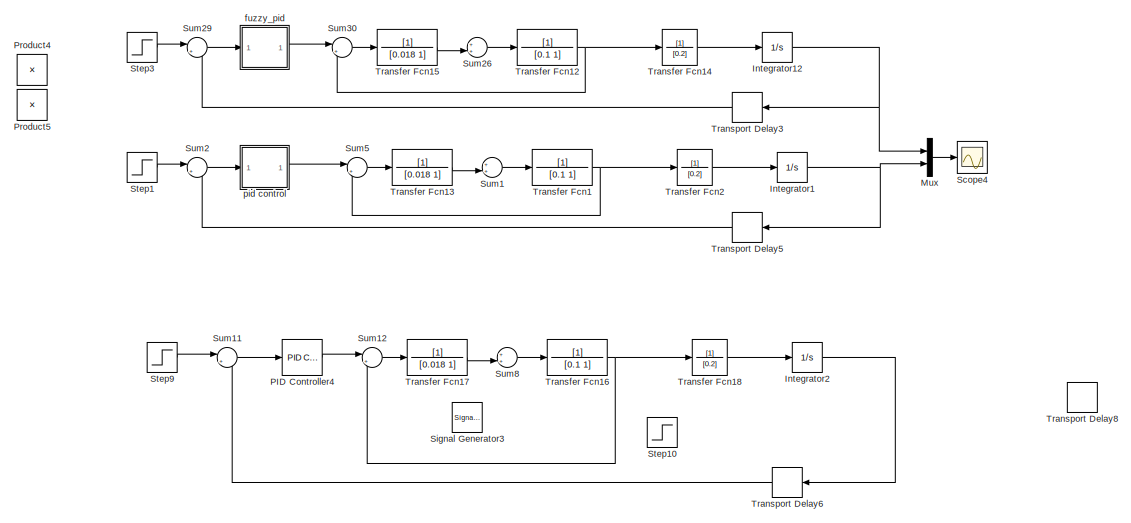
[diagram: root canvas - part 1/2, full width, top band]
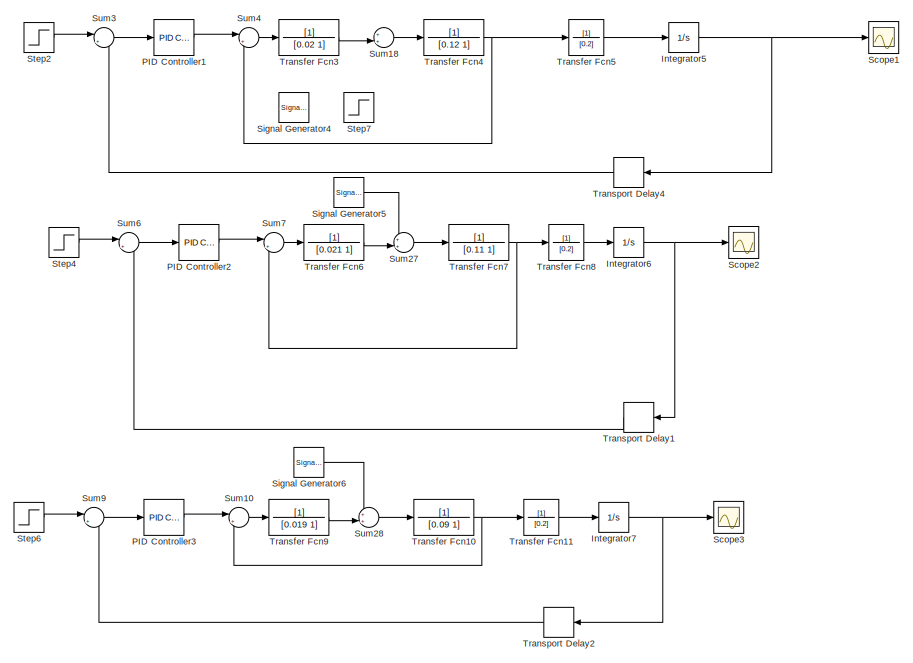
[diagram: root canvas - part 2/2, full width, bottom band]
MODEL slx_6479c2ebfd4b
KIND model
BLOCK [Integrator] Integrator1
  Ports = [1, 1]
BLOCK [Integrator] Integrator12
  Ports = [1, 1]
BLOCK [Integrator] Integrator2
  Ports = [1, 1]
BLOCK [Integrator] Integrator5
  Ports = [1, 1]
BLOCK [Integrator] Integrator6
  Ports = [1, 1]
BLOCK [Integrator] Integrator7
  Ports = [1, 1]
BLOCK [Mux] Mux
  DisplayOption = bar
  Inputs = 2
  Ports = [2, 1]
BLOCK [Reference] PID Controller1  REF=simulink/Continuous/PID Controller
  AntiWindupMode = none
  Controller = PID
  D = 0.190106280421876
  DOutDataTypeStr = Inherit: Inherit via internal rule
  DOutMax = []
  DOutMin = []
  DParamDataTypeStr = Inherit: Inherit via internal rule
  DParamMax = []
  DParamMin = []
  DifferentiatorICPrevScaledInput = 0
  DifferentiatorOutDataTypeStr = Inherit: Inherit via internal rule
  DifferentiatorOutMax = []
  DifferentiatorOutMin = []
  ExternalReset = none
  FilterContinuousStateAttributes = ''
  FilterMethod = Forward Euler
  FilterOutDataTypeStr = Inherit: Inherit via internal rule
  FilterOutMax = []
  FilterOutMin = []
  FilterRTWStateStorageClass = Auto
  FilterStateMustResolveToSignalObject = off
  Form = Parallel
  I = 0.409606906541511
  IOutDataTypeStr = Inherit: Inherit via internal rule
  IOutMax = []
  IOutMin = []
  IParamDataTypeStr = Inherit: Inherit via internal rule
  IParamMax = []
  IParamMin = []
  IgnoreLimit = off
  InitialConditionForFilter = 0
  InitialConditionForIntegrator = 0
  InitialConditionSource = internal
  IntegratorContinuousStateAttributes = ''
  IntegratorMethod = Forward Euler
  IntegratorOutDataTypeStr = Inherit: Inherit via internal rule
  IntegratorOutMax = []
  IntegratorOutMin = []
  IntegratorRTWStateStorageClass = Auto
  IntegratorStateMustResolveToSignalObject = off
  Kb = 1
  KbOutDataTypeStr = Inherit: Inherit via internal rule
  KbOutMax = []
  KbOutMin = []
  KbParamDataTypeStr = Inherit: Inherit via internal rule
  KbParamMax = []
  KbParamMin = []
  Kt = 1
  KtOutDataTypeStr = Inherit: Inherit via internal rule
  KtOutMax = []
  KtOutMin = []
  KtParamDataTypeStr = Inherit: Inherit via internal rule
  KtParamMax = []
  KtParamMin = []
  LimitOutput = off
  LinearizeAsGain = on
  LockScale = off
  LowerSaturationLimit = -inf
  N = 113.521570556965
  NOutDataTypeStr = Inherit: Inherit via internal rule
  NOutMax = []
  NOutMin = []
  NParamDataTypeStr = Inherit: Inherit via internal rule
  NParamMax = []
  NParamMin = []
  P = 4.34348893595362
  POutDataTypeStr = Inherit: Inherit via internal rule
  POutMax = []
  POutMin = []
  PParamDataTypeStr = Inherit: Inherit via internal rule
  PParamMax = []
  PParamMin = []
  Ports = [1, 1]
  RndMeth = Floor
  SampleTime = -1
  SaturateOnIntegerOverflow = off
  SaturationOutDataTypeStr = Inherit: Same as input
  SaturationOutMax = []
  SaturationOutMin = []
  SourceBlock = simulink/Continuous/PID Controller
  SourceType = PID 1dof
  SumAccumDataTypeStr = Inherit: Inherit via internal rule
  SumDAccumDataTypeStr = Inherit: Inherit via internal rule
  SumDOutDataTypeStr = Inherit: Inherit via internal rule
  SumDOutMax = []
  SumDOutMin = []
  SumI1AccumDataTypeStr = Inherit: Inherit via internal rule
  SumI1OutDataTypeStr = Inherit: Inherit via internal rule
  SumI1OutMax = []
  SumI1OutMin = []
  SumI2AccumDataTypeStr = Inherit: Inherit via internal rule
  SumI2OutDataTypeStr = Inherit: Inherit via internal rule
  SumI2OutMax = []
  SumI2OutMin = []
  SumI3AccumDataTypeStr = Inherit: Inherit via internal rule
  SumI3OutDataTypeStr = Inherit: Inherit via internal rule
  SumI3OutMax = []
  SumI3OutMin = []
  SumOutDataTypeStr = Inherit: Inherit via internal rule
  SumOutMax = []
  SumOutMin = []
  TimeDomain = Continuous-time
  TrackingMode = off
  UpperSaturationLimit = inf
  UseFilter = on
  ZeroCross = on
BLOCK [Reference] PID Controller2  REF=simulink/Continuous/PID Controller
  AntiWindupMode = none
  Controller = PID
  D = 0.176716531069936
  DOutDataTypeStr = Inherit: Inherit via internal rule
  DOutMax = []
  DOutMin = []
  DParamDataTypeStr = Inherit: Inherit via internal rule
  DParamMax = []
  DParamMin = []
  DifferentiatorICPrevScaledInput = 0
  DifferentiatorOutDataTypeStr = Inherit: Inherit via internal rule
  DifferentiatorOutMax = []
  DifferentiatorOutMin = []
  ExternalReset = none
  FilterContinuousStateAttributes = ''
  FilterMethod = Forward Euler
  FilterOutDataTypeStr = Inherit: Inherit via internal rule
  FilterOutMax = []
  FilterOutMin = []
  FilterRTWStateStorageClass = Auto
  FilterStateMustResolveToSignalObject = off
  Form = Parallel
  I = 0.418612157121434
  IOutDataTypeStr = Inherit: Inherit via internal rule
  IOutMax = []
  IOutMin = []
  IParamDataTypeStr = Inherit: Inherit via internal rule
  IParamMax = []
  IParamMin = []
  IgnoreLimit = off
  InitialConditionForFilter = 0
  InitialConditionForIntegrator = 0
  InitialConditionSource = internal
  IntegratorContinuousStateAttributes = ''
  IntegratorMethod = Forward Euler
  IntegratorOutDataTypeStr = Inherit: Inherit via internal rule
  IntegratorOutMax = []
  IntegratorOutMin = []
  IntegratorRTWStateStorageClass = Auto
  IntegratorStateMustResolveToSignalObject = off
  Kb = 1
  KbOutDataTypeStr = Inherit: Inherit via internal rule
  KbOutMax = []
  KbOutMin = []
  KbParamDataTypeStr = Inherit: Inherit via internal rule
  KbParamMax = []
  KbParamMin = []
  Kt = 1
  KtOutDataTypeStr = Inherit: Inherit via internal rule
  KtOutMax = []
  KtOutMin = []
  KtParamDataTypeStr = Inherit: Inherit via internal rule
  KtParamMax = []
  KtParamMin = []
  LimitOutput = off
  LinearizeAsGain = on
  LockScale = off
  LowerSaturationLimit = -inf
  N = 115.244644738995
  NOutDataTypeStr = Inherit: Inherit via internal rule
  NOutMax = []
  NOutMin = []
  NParamDataTypeStr = Inherit: Inherit via internal rule
  NParamMax = []
  NParamMin = []
  P = 4.3714761921553
  POutDataTypeStr = Inherit: Inherit via internal rule
  POutMax = []
  POutMin = []
  PParamDataTypeStr = Inherit: Inherit via internal rule
  PParamMax = []
  PParamMin = []
  Ports = [1, 1]
  RndMeth = Floor
  SampleTime = -1
  SaturateOnIntegerOverflow = off
  SaturationOutDataTypeStr = Inherit: Same as input
  SaturationOutMax = []
  SaturationOutMin = []
  SourceBlock = simulink/Continuous/PID Controller
  SourceType = PID 1dof
  SumAccumDataTypeStr = Inherit: Inherit via internal rule
  SumDAccumDataTypeStr = Inherit: Inherit via internal rule
  SumDOutDataTypeStr = Inherit: Inherit via internal rule
  SumDOutMax = []
  SumDOutMin = []
  SumI1AccumDataTypeStr = Inherit: Inherit via internal rule
  SumI1OutDataTypeStr = Inherit: Inherit via internal rule
  SumI1OutMax = []
  SumI1OutMin = []
  SumI2AccumDataTypeStr = Inherit: Inherit via internal rule
  SumI2OutDataTypeStr = Inherit: Inherit via internal rule
  SumI2OutMax = []
  SumI2OutMin = []
  SumI3AccumDataTypeStr = Inherit: Inherit via internal rule
  SumI3OutDataTypeStr = Inherit: Inherit via internal rule
  SumI3OutMax = []
  SumI3OutMin = []
  SumOutDataTypeStr = Inherit: Inherit via internal rule
  SumOutMax = []
  SumOutMin = []
  TimeDomain = Continuous-time
  TrackingMode = off
  UpperSaturationLimit = inf
  UseFilter = on
  ZeroCross = on
BLOCK [Reference] PID Controller3  REF=simulink/Continuous/PID Controller
  AntiWindupMode = none
  Controller = PID
  D = 0.137661903224342
  DOutDataTypeStr = Inherit: Inherit via internal rule
  DOutMax = []
  DOutMin = []
  DParamDataTypeStr = Inherit: Inherit via internal rule
  DParamMax = []
  DParamMin = []
  DifferentiatorICPrevScaledInput = 0
  DifferentiatorOutDataTypeStr = Inherit: Inherit via internal rule
  DifferentiatorOutMax = []
  DifferentiatorOutMin = []
  ExternalReset = none
  FilterContinuousStateAttributes = ''
  FilterMethod = Forward Euler
  FilterOutDataTypeStr = Inherit: Inherit via internal rule
  FilterOutMax = []
  FilterOutMin = []
  FilterRTWStateStorageClass = Auto
  FilterStateMustResolveToSignalObject = off
  Form = Parallel
  I = 0.450019772467081
  IOutDataTypeStr = Inherit: Inherit via internal rule
  IOutMax = []
  IOutMin = []
  IParamDataTypeStr = Inherit: Inherit via internal rule
  IParamMax = []
  IParamMin = []
  IgnoreLimit = off
  InitialConditionForFilter = 0
  InitialConditionForIntegrator = 0
  InitialConditionSource = internal
  IntegratorContinuousStateAttributes = ''
  IntegratorMethod = Forward Euler
  IntegratorOutDataTypeStr = Inherit: Inherit via internal rule
  IntegratorOutMax = []
  IntegratorOutMin = []
  IntegratorRTWStateStorageClass = Auto
  IntegratorStateMustResolveToSignalObject = off
  Kb = 1
  KbOutDataTypeStr = Inherit: Inherit via internal rule
  KbOutMax = []
  KbOutMin = []
  KbParamDataTypeStr = Inherit: Inherit via internal rule
  KbParamMax = []
  KbParamMin = []
  Kt = 1
  KtOutDataTypeStr = Inherit: Inherit via internal rule
  KtOutMax = []
  KtOutMin = []
  KtParamDataTypeStr = Inherit: Inherit via internal rule
  KtParamMax = []
  KtParamMin = []
  LimitOutput = off
  LinearizeAsGain = on
  LockScale = off
  LowerSaturationLimit = -inf
  N = 119.172045893014
  NOutDataTypeStr = Inherit: Inherit via internal rule
  NOutMax = []
  NOutMin = []
  NParamDataTypeStr = Inherit: Inherit via internal rule
  NParamMax = []
  NParamMin = []
  P = 4.54060551459518
  POutDataTypeStr = Inherit: Inherit via internal rule
  POutMax = []
  POutMin = []
  PParamDataTypeStr = Inherit: Inherit via internal rule
  PParamMax = []
  PParamMin = []
  Ports = [1, 1]
  RndMeth = Floor
  SampleTime = -1
  SaturateOnIntegerOverflow = off
  SaturationOutDataTypeStr = Inherit: Same as input
  SaturationOutMax = []
  SaturationOutMin = []
  SourceBlock = simulink/Continuous/PID Controller
  SourceType = PID 1dof
  SumAccumDataTypeStr = Inherit: Inherit via internal rule
  SumDAccumDataTypeStr = Inherit: Inherit via internal rule
  SumDOutDataTypeStr = Inherit: Inherit via internal rule
  SumDOutMax = []
  SumDOutMin = []
  SumI1AccumDataTypeStr = Inherit: Inherit via internal rule
  SumI1OutDataTypeStr = Inherit: Inherit via internal rule
  SumI1OutMax = []
  SumI1OutMin = []
  SumI2AccumDataTypeStr = Inherit: Inherit via internal rule
  SumI2OutDataTypeStr = Inherit: Inherit via internal rule
  SumI2OutMax = []
  SumI2OutMin = []
  SumI3AccumDataTypeStr = Inherit: Inherit via internal rule
  SumI3OutDataTypeStr = Inherit: Inherit via internal rule
  SumI3OutMax = []
  SumI3OutMin = []
  SumOutDataTypeStr = Inherit: Inherit via internal rule
  SumOutMax = []
  SumOutMin = []
  TimeDomain = Continuous-time
  TrackingMode = off
  UpperSaturationLimit = inf
  UseFilter = on
  ZeroCross = on
BLOCK [Reference] PID Controller4  REF=simulink/Continuous/PID Controller
  AntiWindupMode = none
  Controller = PID
  D = 0.315560684469702
  DOutDataTypeStr = Inherit: Inherit via internal rule
  DOutMax = []
  DOutMin = []
  DParamDataTypeStr = Inherit: Inherit via internal rule
  DParamMax = []
  DParamMin = []
  DifferentiatorICPrevScaledInput = 0
  DifferentiatorOutDataTypeStr = Inherit: Inherit via internal rule
  DifferentiatorOutMax = []
  DifferentiatorOutMin = []
  ExternalReset = none
  FilterContinuousStateAttributes = ''
  FilterMethod = Forward Euler
  FilterOutDataTypeStr = Inherit: Inherit via internal rule
  FilterOutMax = []
  FilterOutMin = []
  FilterRTWStateStorageClass = Auto
  FilterStateMustResolveToSignalObject = off
  Form = Parallel
  I = 1.09867748930147
  IOutDataTypeStr = Inherit: Inherit via internal rule
  IOutMax = []
  IOutMin = []
  IParamDataTypeStr = Inherit: Inherit via internal rule
  IParamMax = []
  IParamMin = []
  IgnoreLimit = off
  InitialConditionForFilter = 0
  InitialConditionForIntegrator = 0
  InitialConditionSource = internal
  IntegratorContinuousStateAttributes = ''
  IntegratorMethod = Forward Euler
  IntegratorOutDataTypeStr = Inherit: Inherit via internal rule
  IntegratorOutMax = []
  IntegratorOutMin = []
  IntegratorRTWStateStorageClass = Auto
  IntegratorStateMustResolveToSignalObject = off
  Kb = 1
  KbOutDataTypeStr = Inherit: Inherit via internal rule
  KbOutMax = []
  KbOutMin = []
  KbParamDataTypeStr = Inherit: Inherit via internal rule
  KbParamMax = []
  KbParamMin = []
  Kt = 1
  KtOutDataTypeStr = Inherit: Inherit via internal rule
  KtOutMax = []
  KtOutMin = []
  KtParamDataTypeStr = Inherit: Inherit via internal rule
  KtParamMax = []
  KtParamMin = []
  LimitOutput = off
  LinearizeAsGain = on
  LockScale = off
  LowerSaturationLimit = -inf
  N = 2035.68968381362
  NOutDataTypeStr = Inherit: Inherit via internal rule
  NOutMax = []
  NOutMin = []
  NParamDataTypeStr = Inherit: Inherit via internal rule
  NParamMax = []
  NParamMin = []
  P = 7.09807299066698
  POutDataTypeStr = Inherit: Inherit via internal rule
  POutMax = []
  POutMin = []
  PParamDataTypeStr = Inherit: Inherit via internal rule
  PParamMax = []
  PParamMin = []
  Ports = [1, 1]
  RndMeth = Floor
  SampleTime = -1
  SaturateOnIntegerOverflow = off
  SaturationOutDataTypeStr = Inherit: Same as input
  SaturationOutMax = []
  SaturationOutMin = []
  SourceBlock = simulink/Continuous/PID Controller
  SourceType = PID 1dof
  SumAccumDataTypeStr = Inherit: Inherit via internal rule
  SumDAccumDataTypeStr = Inherit: Inherit via internal rule
  SumDOutDataTypeStr = Inherit: Inherit via internal rule
  SumDOutMax = []
  SumDOutMin = []
  SumI1AccumDataTypeStr = Inherit: Inherit via internal rule
  SumI1OutDataTypeStr = Inherit: Inherit via internal rule
  SumI1OutMax = []
  SumI1OutMin = []
  SumI2AccumDataTypeStr = Inherit: Inherit via internal rule
  SumI2OutDataTypeStr = Inherit: Inherit via internal rule
  SumI2OutMax = []
  SumI2OutMin = []
  SumI3AccumDataTypeStr = Inherit: Inherit via internal rule
  SumI3OutDataTypeStr = Inherit: Inherit via internal rule
  SumI3OutMax = []
  SumI3OutMin = []
  SumOutDataTypeStr = Inherit: Inherit via internal rule
  SumOutMax = []
  SumOutMin = []
  TimeDomain = Continuous-time
  TrackingMode = off
  UpperSaturationLimit = inf
  UseFilter = on
  ZeroCross = on
BLOCK [Product] Product4
  InputSameDT = off
  OutDataTypeStr = Inherit: Inherit via internal rule
  Ports = [2, 1]
  SaturateOnIntegerOverflow = off
BLOCK [Product] Product5
  InputSameDT = off
  OutDataTypeStr = Inherit: Inherit via internal rule
  Ports = [2, 1]
  SaturateOnIntegerOverflow = off
BLOCK [Scope] Scope1
  Floating = off
  LimitDataPoints = off
  NumInputPorts = 1
  Ports = [1]
  SaveName = dianji2
  SaveToWorkspace = on
  ShowLegends = off
BLOCK [Scope] Scope2
  Floating = off
  LimitDataPoints = off
  NumInputPorts = 1
  Ports = [1]
  SaveName = dianji3
  SaveToWorkspace = on
  ShowLegends = off
BLOCK [Scope] Scope3
  Floating = off
  LimitDataPoints = off
  NumInputPorts = 1
  Ports = [1]
  SaveName = dianji4
  SaveToWorkspace = on
  ShowLegends = off
BLOCK [Scope] Scope4
  Floating = off
  LimitDataPoints = off
  NumInputPorts = 1
  Ports = [1]
  SaveName = dianjix
  SaveToWorkspace = on
  ShowLegends = off
BLOCK [SignalGenerator] Signal Generator3
  Amplitude = 10
  Frequency = 2
  Ports = [0, 1]
  WaveForm = random
BLOCK [SignalGenerator] Signal Generator4
  Amplitude = 10
  Frequency = 2
  Ports = [0, 1]
  WaveForm = random
BLOCK [SignalGenerator] Signal Generator5
  Amplitude = 10
  Frequency = 2
  Ports = [0, 1]
  WaveForm = random
BLOCK [SignalGenerator] Signal Generator6
  Amplitude = 10
  Frequency = 2
  Ports = [0, 1]
  WaveForm = random
BLOCK [Step] Step1
  After = 50
  SampleTime = 0
BLOCK [Step] Step10
  After = -1
  SampleTime = 0
  Time = 5
BLOCK [Step] Step2
  After = 50
  SampleTime = 0
BLOCK [Step] Step3
  After = 50
  SampleTime = 0
BLOCK [Step] Step4
  SampleTime = 0
BLOCK [Step] Step6
  SampleTime = 0
BLOCK [Step] Step7
  After = -1
  SampleTime = 0
  Time = 5
BLOCK [Step] Step9
  After = 50
  SampleTime = 0
BLOCK [Sum] Sum1
  IconShape = round
  InputSameDT = off
  Inputs = ++|
  OutDataTypeStr = Inherit: Inherit via internal rule
  Ports = [2, 1]
  SaturateOnIntegerOverflow = off
BLOCK [Sum] Sum10
  IconShape = round
  InputSameDT = off
  Inputs = |+-
  OutDataTypeStr = Inherit: Inherit via internal rule
  Ports = [2, 1]
  SaturateOnIntegerOverflow = off
BLOCK [Sum] Sum11
  IconShape = round
  InputSameDT = off
  Inputs = |+-
  OutDataTypeStr = Inherit: Inherit via internal rule
  Ports = [2, 1]
  SaturateOnIntegerOverflow = off
BLOCK [Sum] Sum12
  IconShape = round
  InputSameDT = off
  Inputs = |+-
  OutDataTypeStr = Inherit: Inherit via internal rule
  Ports = [2, 1]
  SaturateOnIntegerOverflow = off
BLOCK [Sum] Sum18
  IconShape = round
  InputSameDT = off
  Inputs = ++|
  OutDataTypeStr = Inherit: Inherit via internal rule
  Ports = [2, 1]
  SaturateOnIntegerOverflow = off
BLOCK [Sum] Sum2
  IconShape = round
  InputSameDT = off
  Inputs = |+-
  OutDataTypeStr = Inherit: Inherit via internal rule
  Ports = [2, 1]
  SaturateOnIntegerOverflow = off
BLOCK [Sum] Sum26
  IconShape = round
  InputSameDT = off
  Inputs = ++|
  OutDataTypeStr = Inherit: Inherit via internal rule
  Ports = [2, 1]
  SaturateOnIntegerOverflow = off
BLOCK [Sum] Sum27
  IconShape = round
  InputSameDT = off
  Inputs = ++|
  OutDataTypeStr = Inherit: Inherit via internal rule
  Ports = [2, 1]
  SaturateOnIntegerOverflow = off
BLOCK [Sum] Sum28
  IconShape = round
  InputSameDT = off
  Inputs = ++|
  OutDataTypeStr = Inherit: Inherit via internal rule
  Ports = [2, 1]
  SaturateOnIntegerOverflow = off
BLOCK [Sum] Sum29
  IconShape = round
  InputSameDT = off
  Inputs = |+-
  OutDataTypeStr = Inherit: Inherit via internal rule
  Ports = [2, 1]
  SaturateOnIntegerOverflow = off
BLOCK [Sum] Sum3
  IconShape = round
  InputSameDT = off
  Inputs = |+-
  OutDataTypeStr = Inherit: Inherit via internal rule
  Ports = [2, 1]
  SaturateOnIntegerOverflow = off
BLOCK [Sum] Sum30
  IconShape = round
  InputSameDT = off
  Inputs = |+-
  OutDataTypeStr = Inherit: Inherit via internal rule
  Ports = [2, 1]
  SaturateOnIntegerOverflow = off
BLOCK [Sum] Sum4
  IconShape = round
  InputSameDT = off
  Inputs = |+-
  OutDataTypeStr = Inherit: Inherit via internal rule
  Ports = [2, 1]
  SaturateOnIntegerOverflow = off
BLOCK [Sum] Sum5
  IconShape = round
  InputSameDT = off
  Inputs = |+-
  OutDataTypeStr = Inherit: Inherit via internal rule
  Ports = [2, 1]
  SaturateOnIntegerOverflow = off
BLOCK [Sum] Sum6
  IconShape = round
  InputSameDT = off
  Inputs = |+-
  OutDataTypeStr = Inherit: Inherit via internal rule
  Ports = [2, 1]
  SaturateOnIntegerOverflow = off
BLOCK [Sum] Sum7
  IconShape = round
  InputSameDT = off
  Inputs = |+-
  OutDataTypeStr = Inherit: Inherit via internal rule
  Ports = [2, 1]
  SaturateOnIntegerOverflow = off
BLOCK [Sum] Sum8
  IconShape = round
  InputSameDT = off
  Inputs = ++|
  OutDataTypeStr = Inherit: Inherit via internal rule
  Ports = [2, 1]
  SaturateOnIntegerOverflow = off
BLOCK [Sum] Sum9
  IconShape = round
  InputSameDT = off
  Inputs = |+-
  OutDataTypeStr = Inherit: Inherit via internal rule
  Ports = [2, 1]
  SaturateOnIntegerOverflow = off
BLOCK [TransferFcn] Transfer Fcn1
  Denominator = [0.1 1]
BLOCK [TransferFcn] Transfer Fcn10
  Denominator = [0.09 1]
BLOCK [TransferFcn] Transfer Fcn11
  Denominator = [0.2]
BLOCK [TransferFcn] Transfer Fcn12
  Denominator = [0.1 1]
BLOCK [TransferFcn] Transfer Fcn13
  Denominator = [0.018 1]
BLOCK [TransferFcn] Transfer Fcn14
  Denominator = [0.2]
BLOCK [TransferFcn] Transfer Fcn15
  Denominator = [0.018 1]
BLOCK [TransferFcn] Transfer Fcn16
  Denominator = [0.1 1]
BLOCK [TransferFcn] Transfer Fcn17
  Denominator = [0.018 1]
BLOCK [TransferFcn] Transfer Fcn18
  Denominator = [0.2]
BLOCK [TransferFcn] Transfer Fcn2
  Denominator = [0.2]
BLOCK [TransferFcn] Transfer Fcn3
  Denominator = [0.02 1]
BLOCK [TransferFcn] Transfer Fcn4
  Denominator = [0.12 1]
BLOCK [TransferFcn] Transfer Fcn5
  Denominator = [0.2]
BLOCK [TransferFcn] Transfer Fcn6
  Denominator = [0.021 1]
BLOCK [TransferFcn] Transfer Fcn7
  Denominator = [0.11 1]
BLOCK [TransferFcn] Transfer Fcn8
  Denominator = [0.2]
BLOCK [TransferFcn] Transfer Fcn9
  Denominator = [0.019 1]
BLOCK [TransportDelay] Transport Delay1
  DelayTime = 0.02
  Ports = [1, 1]
BLOCK [TransportDelay] Transport Delay2
  DelayTime = 0.02
  Ports = [1, 1]
BLOCK [TransportDelay] Transport Delay3
  DelayTime = 0.004
  Ports = [1, 1]
BLOCK [TransportDelay] Transport Delay4
  DelayTime = 0.02
  Ports = [1, 1]
BLOCK [TransportDelay] Transport Delay5
  DelayTime = 0.004
  Ports = [1, 1]
BLOCK [TransportDelay] Transport Delay6
  DelayTime = 0.004
  Ports = [1, 1]
BLOCK [TransportDelay] Transport Delay8
  DelayTime = 0.004
  Ports = [1, 1]
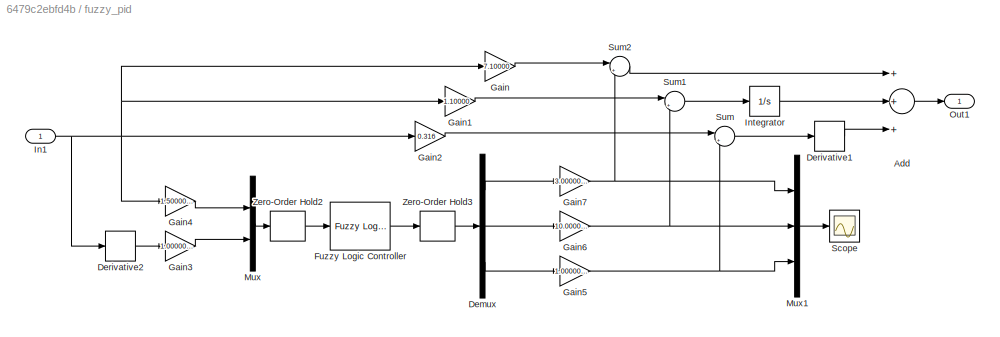
BLOCK [SubSystem] fuzzy_pid
  Ports = [1, 1]
  RequestExecContextInheritance = off
BLOCK [Sum] fuzzy_pid/Add
  InputSameDT = off
  Inputs = +++
  OutDataTypeStr = Inherit: Inherit via internal rule
  Ports = [3, 1]
  SaturateOnIntegerOverflow = off
BLOCK [Demux] fuzzy_pid/Demux
  DisplayOption = bar
  Outputs = 3
  Ports = [1, 3]
BLOCK [Derivative] fuzzy_pid/Derivative1
BLOCK [Derivative] fuzzy_pid/Derivative2
BLOCK [Reference] fuzzy_pid/Fuzzy Logic Controller  REF=fuzblock/Fuzzy Logic   (lib defined in mdl_858b3b3e7478)
Controller
  Ports = [1, 1]
  SourceBlock = fuzblock/Fuzzy Logic \nController
  SourceType = FIS
  fis = fuzzy_1
BLOCK [Gain] fuzzy_pid/Gain
  Gain = 7.10000
  OutDataTypeStr = Inherit: Inherit via internal rule
  ParamDataTypeStr = Inherit: Inherit via internal rule
  SaturateOnIntegerOverflow = off
BLOCK [Gain] fuzzy_pid/Gain1
  Gain = 1.10000
  OutDataTypeStr = Inherit: Inherit via internal rule
  ParamDataTypeStr = Inherit: Inherit via internal rule
  SaturateOnIntegerOverflow = off
BLOCK [Gain] fuzzy_pid/Gain2
  Gain = 0.316
  OutDataTypeStr = Inherit: Inherit via internal rule
  ParamDataTypeStr = Inherit: Inherit via internal rule
  SaturateOnIntegerOverflow = off
BLOCK [Gain] fuzzy_pid/Gain3
  Gain = 1.000000000000
  OutDataTypeStr = Inherit: Inherit via internal rule
  ParamDataTypeStr = Inherit: Inherit via internal rule
  SaturateOnIntegerOverflow = off
BLOCK [Gain] fuzzy_pid/Gain4
  Gain = 1.5000000000
  OutDataTypeStr = Inherit: Inherit via internal rule
  ParamDataTypeStr = Inherit: Inherit via internal rule
  SaturateOnIntegerOverflow = off
BLOCK [Gain] fuzzy_pid/Gain5
  Gain = 1.00000000000
  OutDataTypeStr = Inherit: Inherit via internal rule
  ParamDataTypeStr = Inherit: Inherit via internal rule
  SaturateOnIntegerOverflow = off
BLOCK [Gain] fuzzy_pid/Gain6
  Gain = 10.000000000
  OutDataTypeStr = Inherit: Inherit via internal rule
  ParamDataTypeStr = Inherit: Inherit via internal rule
  SaturateOnIntegerOverflow = off
BLOCK [Gain] fuzzy_pid/Gain7
  Gain = 3.0000000000
  OutDataTypeStr = Inherit: Inherit via internal rule
  ParamDataTypeStr = Inherit: Inherit via internal rule
  SaturateOnIntegerOverflow = off
BLOCK [Inport] fuzzy_pid/In1
  IconDisplay = Port number
BLOCK [Integrator] fuzzy_pid/Integrator
  Ports = [1, 1]
BLOCK [Mux] fuzzy_pid/Mux
  DisplayOption = bar
  Inputs = 2
  Ports = [2, 1]
BLOCK [Mux] fuzzy_pid/Mux1
  DisplayOption = bar
  Inputs = 3
  Ports = [3, 1]
BLOCK [Outport] fuzzy_pid/Out1
  IconDisplay = Port number
BLOCK [Scope] fuzzy_pid/Scope
  Floating = off
  NumInputPorts = 1
  Ports = [1]
  SaveName = ScopeData1
  ShowLegends = off
BLOCK [Sum] fuzzy_pid/Sum
  IconShape = round
  InputSameDT = off
  Inputs = |++
  OutDataTypeStr = Inherit: Inherit via internal rule
  Ports = [2, 1]
  SaturateOnIntegerOverflow = off
BLOCK [Sum] fuzzy_pid/Sum1
  IconShape = round
  InputSameDT = off
  Inputs = |++
  OutDataTypeStr = Inherit: Inherit via internal rule
  Ports = [2, 1]
  SaturateOnIntegerOverflow = off
BLOCK [Sum] fuzzy_pid/Sum2
  IconShape = round
  InputSameDT = off
  Inputs = |++
  OutDataTypeStr = Inherit: Inherit via internal rule
  Ports = [2, 1]
  SaturateOnIntegerOverflow = off
BLOCK [ZeroOrderHold] fuzzy_pid/Zero-Order Hold2
  SampleTime = 0.01
BLOCK [ZeroOrderHold] fuzzy_pid/Zero-Order Hold3
  SampleTime = 0.01
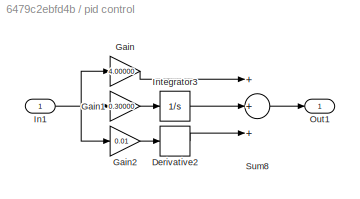
BLOCK [SubSystem] pid control
  Ports = [1, 1]
  RequestExecContextInheritance = off
BLOCK [Derivative] pid control/Derivative2
BLOCK [Gain] pid control/Gain
  Gain = 4.00000
  OutDataTypeStr = Inherit: Inherit via internal rule
  ParamDataTypeStr = Inherit: Inherit via internal rule
  SaturateOnIntegerOverflow = off
BLOCK [Gain] pid control/Gain1
  Gain = 0.30000
  OutDataTypeStr = Inherit: Inherit via internal rule
  ParamDataTypeStr = Inherit: Inherit via internal rule
  SaturateOnIntegerOverflow = off
BLOCK [Gain] pid control/Gain2
  Gain = 0.01
  OutDataTypeStr = Inherit: Inherit via internal rule
  ParamDataTypeStr = Inherit: Inherit via internal rule
  SaturateOnIntegerOverflow = off
BLOCK [Inport] pid control/In1
  IconDisplay = Port number
BLOCK [Integrator] pid control/Integrator3
  Ports = [1, 1]
BLOCK [Outport] pid control/Out1
  IconDisplay = Port number
BLOCK [Sum] pid control/Sum8
  InputSameDT = off
  Inputs = +++
  OutDataTypeStr = Inherit: Inherit via internal rule
  Ports = [3, 1]
  SaturateOnIntegerOverflow = off
NET Integrator12:1 -> Mux:1, Transport Delay3:1
NET Integrator1:1 -> Mux:2, Transport Delay5:1
LINE Integrator2:1 -> Transport Delay6:1
NET Integrator5:1 -> Scope1:1, Transport Delay4:1
NET Integrator6:1 -> Scope2:1, Transport Delay1:1
NET Integrator7:1 -> Scope3:1, Transport Delay2:1
LINE Mux:1 -> Scope4:1
LINE PID Controller1:1 -> Sum4:1
LINE PID Controller2:1 -> Sum7:1
LINE PID Controller3:1 -> Sum10:1
LINE PID Controller4:1 -> Sum12:1
LINE Signal Generator5:1 -> Sum27:1
LINE Signal Generator6:1 -> Sum28:1
LINE Step1:1 -> Sum2:1
LINE Step2:1 -> Sum3:1
LINE Step3:1 -> Sum29:1
LINE Step4:1 -> Sum6:1
LINE Step6:1 -> Sum9:1
LINE Step9:1 -> Sum11:1
LINE Sum10:1 -> Transfer Fcn9:1
LINE Sum11:1 -> PID Controller4:1
LINE Sum12:1 -> Transfer Fcn17:1
LINE Sum18:1 -> Transfer Fcn4:1
LINE Sum1:1 -> Transfer Fcn1:1
LINE Sum26:1 -> Transfer Fcn12:1
LINE Sum27:1 -> Transfer Fcn7:1
LINE Sum28:1 -> Transfer Fcn10:1
LINE Sum29:1 -> fuzzy_pid:1
LINE Sum2:1 -> pid control:1
LINE Sum30:1 -> Transfer Fcn15:1
LINE Sum3:1 -> PID Controller1:1
LINE Sum4:1 -> Transfer Fcn3:1
LINE Sum5:1 -> Transfer Fcn13:1
LINE Sum6:1 -> PID Controller2:1
LINE Sum7:1 -> Transfer Fcn6:1
LINE Sum8:1 -> Transfer Fcn16:1
LINE Sum9:1 -> PID Controller3:1
NET Transfer Fcn10:1 -> Sum10:2, Transfer Fcn11:1
LINE Transfer Fcn11:1 -> Integrator7:1
NET Transfer Fcn12:1 -> Sum30:2, Transfer Fcn14:1
LINE Transfer Fcn13:1 -> Sum1:2
LINE Transfer Fcn14:1 -> Integrator12:1
LINE Transfer Fcn15:1 -> Sum26:2
NET Transfer Fcn16:1 -> Sum12:2, Transfer Fcn18:1
LINE Transfer Fcn17:1 -> Sum8:2
LINE Transfer Fcn18:1 -> Integrator2:1
NET Transfer Fcn1:1 -> Sum5:2, Transfer Fcn2:1
LINE Transfer Fcn2:1 -> Integrator1:1
LINE Transfer Fcn3:1 -> Sum18:2
NET Transfer Fcn4:1 -> Sum4:2, Transfer Fcn5:1
LINE Transfer Fcn5:1 -> Integrator5:1
LINE Transfer Fcn6:1 -> Sum27:2
NET Transfer Fcn7:1 -> Sum7:2, Transfer Fcn8:1
LINE Transfer Fcn8:1 -> Integrator6:1
LINE Transfer Fcn9:1 -> Sum28:2
LINE Transport Delay1:1 -> Sum6:2
LINE Transport Delay2:1 -> Sum9:2
LINE Transport Delay3:1 -> Sum29:2
LINE Transport Delay4:1 -> Sum3:2
LINE Transport Delay5:1 -> Sum2:2
LINE Transport Delay6:1 -> Sum11:2
LINE fuzzy_pid/Add:1 -> fuzzy_pid/Out1:1
LINE fuzzy_pid/Demux:1 -> fuzzy_pid/Gain7:1
LINE fuzzy_pid/Demux:2 -> fuzzy_pid/Gain6:1
LINE fuzzy_pid/Demux:3 -> fuzzy_pid/Gain5:1
LINE fuzzy_pid/Derivative1:1 -> fuzzy_pid/Add:3
LINE fuzzy_pid/Derivative2:1 -> fuzzy_pid/Gain3:1
LINE fuzzy_pid/Fuzzy Logic Controller:1 -> fuzzy_pid/Zero-Order Hold3:1
LINE fuzzy_pid/Gain1:1 -> fuzzy_pid/Sum1:1
LINE fuzzy_pid/Gain2:1 -> fuzzy_pid/Sum:1
LINE fuzzy_pid/Gain3:1 -> fuzzy_pid/Mux:2
LINE fuzzy_pid/Gain4:1 -> fuzzy_pid/Mux:1
NET fuzzy_pid/Gain5:1 -> fuzzy_pid/Mux1:3, fuzzy_pid/Sum:2
NET fuzzy_pid/Gain6:1 -> fuzzy_pid/Mux1:2, fuzzy_pid/Sum1:2
NET fuzzy_pid/Gain7:1 -> fuzzy_pid/Mux1:1, fuzzy_pid/Sum2:2
LINE fuzzy_pid/Gain:1 -> fuzzy_pid/Sum2:1
NET fuzzy_pid/In1:1 -> fuzzy_pid/Derivative2:1, fuzzy_pid/Gain1:1, fuzzy_pid/Gain2:1, fuzzy_pid/Gain4:1, fuzzy_pid/Gain:1
LINE fuzzy_pid/Integrator:1 -> fuzzy_pid/Add:2
LINE fuzzy_pid/Mux1:1 -> fuzzy_pid/Scope:1
LINE fuzzy_pid/Mux:1 -> fuzzy_pid/Zero-Order Hold2:1
LINE fuzzy_pid/Sum1:1 -> fuzzy_pid/Integrator:1
LINE fuzzy_pid/Sum2:1 -> fuzzy_pid/Add:1
LINE fuzzy_pid/Sum:1 -> fuzzy_pid/Derivative1:1
LINE fuzzy_pid/Zero-Order Hold2:1 -> fuzzy_pid/Fuzzy Logic Controller:1
LINE fuzzy_pid/Zero-Order Hold3:1 -> fuzzy_pid/Demux:1
LINE fuzzy_pid:1 -> Sum30:1
LINE pid control/Derivative2:1 -> pid control/Sum8:3
LINE pid control/Gain1:1 -> pid control/Integrator3:1
LINE pid control/Gain2:1 -> pid control/Derivative2:1
LINE pid control/Gain:1 -> pid control/Sum8:1
NET pid control/In1:1 -> pid control/Gain1:1, pid control/Gain2:1, pid control/Gain:1
LINE pid control/Integrator3:1 -> pid control/Sum8:2
LINE pid control/Sum8:1 -> pid control/Out1:1
LINE pid control:1 -> Sum5:1
note: NET lines group one-source signal fan-out (src -> all destinations, sorted); 1:1 wires keep LINE
